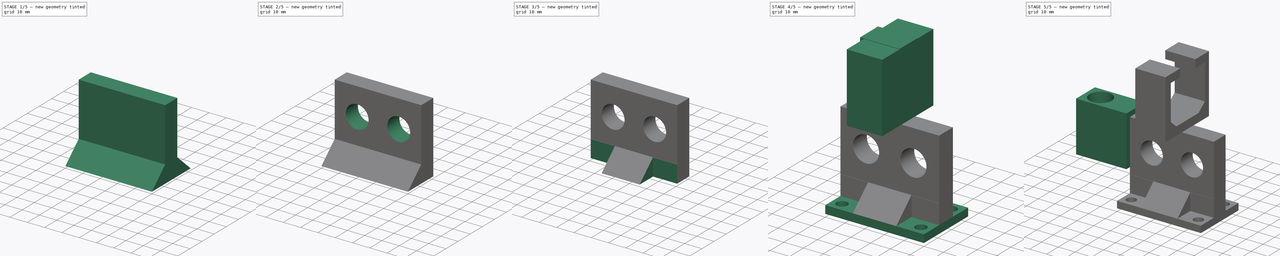
[diagram: build sequence overview — one tinted view per stage of 5, left to right]
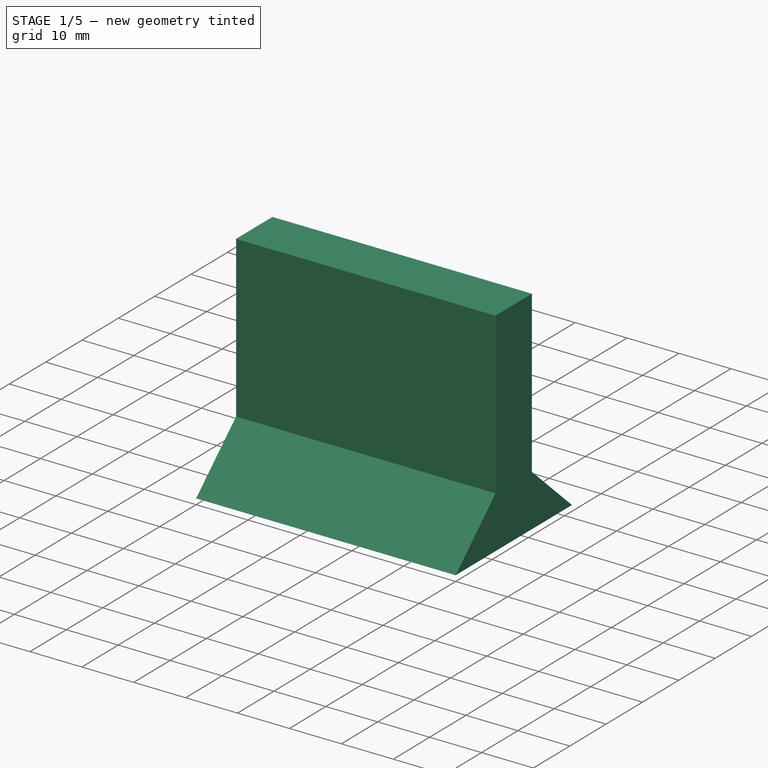
[diagram: stage 1 of 5 — iso view after this stage's code; geometry added in this stage tinted green]
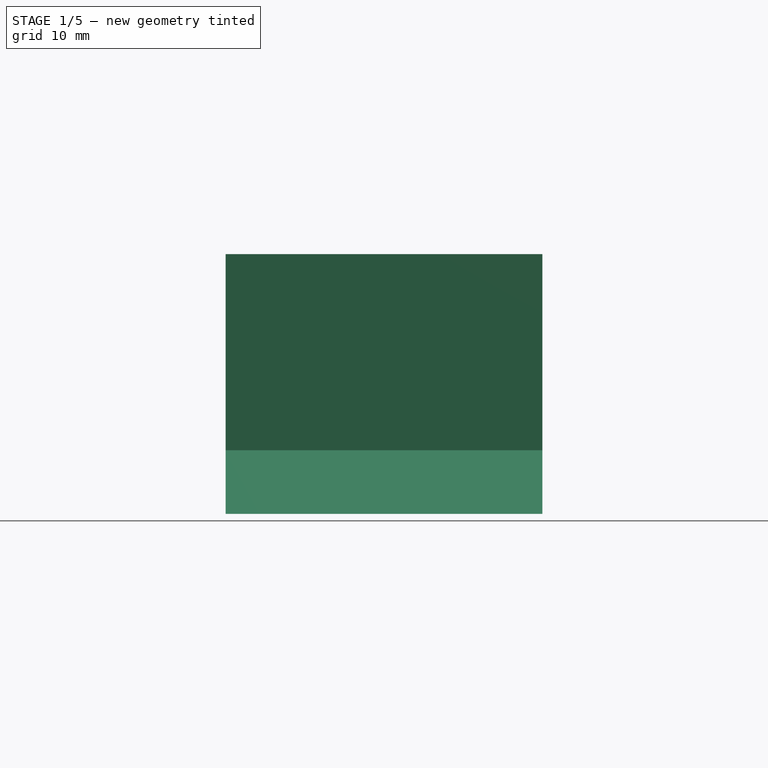
[diagram: stage 1 of 5 — front view after this stage's code; geometry added in this stage tinted green]
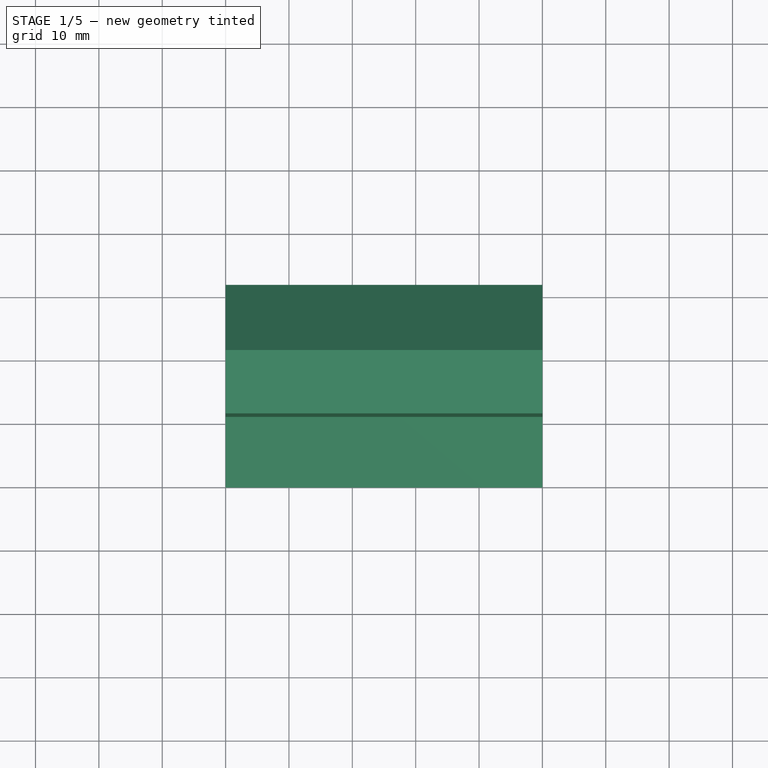
[diagram: stage 1 of 5 — top view after this stage's code; geometry added in this stage tinted green]
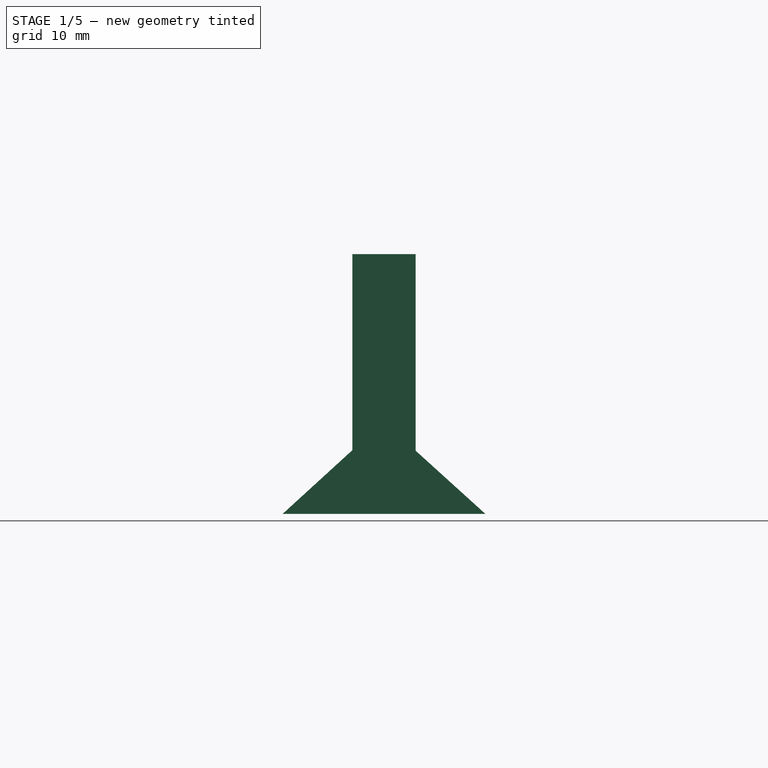
[diagram: stage 1 of 5 — right view after this stage's code; geometry added in this stage tinted green]
FCSTD DOCUMENT  (FreeCAD 0.17R13541 (Git))
Label: LimitSwitchHolder_x-axis_chainholder
License: All rights reserved
LicenseURL: http://en.wikipedia.org/wiki/All_rights_reserved
objects: Sketcher::SketchObject×15, PartDesign::Pad×13, PartDesign::Body×13, PartDesign::ShapeBinder×12, PartDesign::Boolean×12, PartDesign::Hole×2
note: 82 computed .brp shape members not serialized (recipe doc carries the construction recipe); baked Part::Feature solids carry a one-line shape summary decoded from their .brp

FEATURE [Sketcher::SketchObject] Sketch
  MapMode = 5
  Placement = pos=(0,0,0) rot=(0.57735,0.57735,0.57735;2.0944rad)
  Support = -> [YZ_Plane]
  sketch-geometry (4):
    g0: LineSegment StartX=0 StartY=44 StartZ=0 EndX=32 EndY=44 EndZ=0
    g1: LineSegment StartX=32 StartY=44 StartZ=0 EndX=32 EndY=3 EndZ=0
    g2: LineSegment StartX=32 StartY=3 StartZ=0 EndX=0 EndY=3 EndZ=0
    g3: LineSegment StartX=0 StartY=3 StartZ=0 EndX=0 EndY=44 EndZ=0
  constraints (12):
    c: Coincident(g0,g1)
    c: Coincident(g1,g2)
    c: Coincident(g2,g3)
    c: Coincident(g3,g0)
    c: Horizontal(g0)
    c: Horizontal(g2)
    c: Vertical(g1)
    c: Vertical(g3)
    c: DistanceX(g-1,g2) = 0
    c: DistanceY(g-1,g2) = 3
    c: DistanceY(g3,g3) = 41
    c: DistanceX(g2,g2) = 32
FEATURE [PartDesign::Pad] Pad
  Length = 50
  Length2 = 100
  Placement = pos=(0,0,0) rot=(0.57735,0.57735,0.57735;2.0944rad)
  Profile = -> Sketch
  Type = 0
FEATURE [PartDesign::Body] Body004
  Group = -> [CopyPad003,Sketch005,Pad004,Sketch006,Hole001]
  Origin = -> Origin004
  Tip = -> Hole001
FEATURE [PartDesign::ShapeBinder] CopyPad004
FEATURE [Sketcher::SketchObject] Sketch007
  MapMode = 5
  Placement = pos=(0,0,0) rot=(-0.57735,0.57735,0.57735;4.18879rad)
  Support = -> [CopyPad004]
  sketch-geometry (4):
    g0: LineSegment StartX=0 StartY=3 StartZ=0 EndX=-11 EndY=13.048 EndZ=0
    g1: LineSegment StartX=-11 StartY=13.048 StartZ=0 EndX=-11 EndY=44 EndZ=0
    g2: LineSegment StartX=-11 StartY=44 StartZ=0 EndX=0 EndY=44 EndZ=0
    g3: LineSegment StartX=0 StartY=44 StartZ=0 EndX=0 EndY=3 EndZ=0
  constraints (11):
    c: PointOnObject(g0,g-2)
    c: Coincident(g0,g1)
    c: Vertical(g1)
    c: Coincident(g1,g2)
    c: Horizontal(g2)
    c: Coincident(g2,g3)
    c: Coincident(g3,g0)
    c: Vertical(g3)
    c: DistanceX(g2,g2) = 11
    c: DistanceY(g-1,g0) = 3
    c: DistanceY(g3,g3) = 41
FEATURE [PartDesign::Pad] Pad005
  Length = 50
  Length2 = 100
  Profile = -> Sketch007
  Reversed = true
  Type = 0
FEATURE [PartDesign::Body] Body005
  Group = -> [CopyPad004,Sketch007,Pad005]
  Origin = -> Origin005
  Tip = -> Pad005
FEATURE [PartDesign::ShapeBinder] CopyPad005
FEATURE [Sketcher::SketchObject] Sketch008
  MapMode = 5
  Placement = pos=(0,0,0) rot=(-0.57735,0.57735,0.57735;4.18879rad)
  Support = -> [CopyPad005]
  sketch-geometry (4):
    g0: LineSegment StartX=-32 StartY=44 StartZ=0 EndX=-21 EndY=44 EndZ=0
    g1: LineSegment StartX=-21 StartY=44 StartZ=0 EndX=-21 EndY=12.9662 EndZ=0
    g2: LineSegment StartX=-21 StartY=12.9662 StartZ=0 EndX=-32 EndY=3 EndZ=0
    g3: LineSegment StartX=-32 StartY=3 StartZ=0 EndX=-32 EndY=44 EndZ=0
  constraints (11):
    c: Horizontal(g0)
    c: Coincident(g0,g1)
    c: Coincident(g1,g2)
    c: Coincident(g2,g3)
    c: Coincident(g3,g0)
    c: Vertical(g3)
    c: DistanceX(g2,g-1) = 32
    c: DistanceY(g-1,g2) = 3
    c: DistanceY(g3,g3) = 41
    c: DistanceX(g0,g0) = 11
    c: Vertical(g1)
FEATURE [PartDesign::Pad] Pad006
  Length = 50
  Length2 = 100
  Profile = -> Sketch008
  Reversed = true
  Type = 0
FEATURE [PartDesign::Body] Body002
  Group = -> [CopyPad001,Sketch002,Pad002,Boolean]
  Origin = -> Origin002
  Tip = -> Boolean
FEATURE [PartDesign::Boolean] Boolean001
  BaseFeature = -> Pad
  Group = -> [Body005]
  Type = 1
FEATURE [PartDesign::Boolean] Boolean002
  BaseFeature = -> Boolean001
  Group = -> [Body006]
  Type = 1
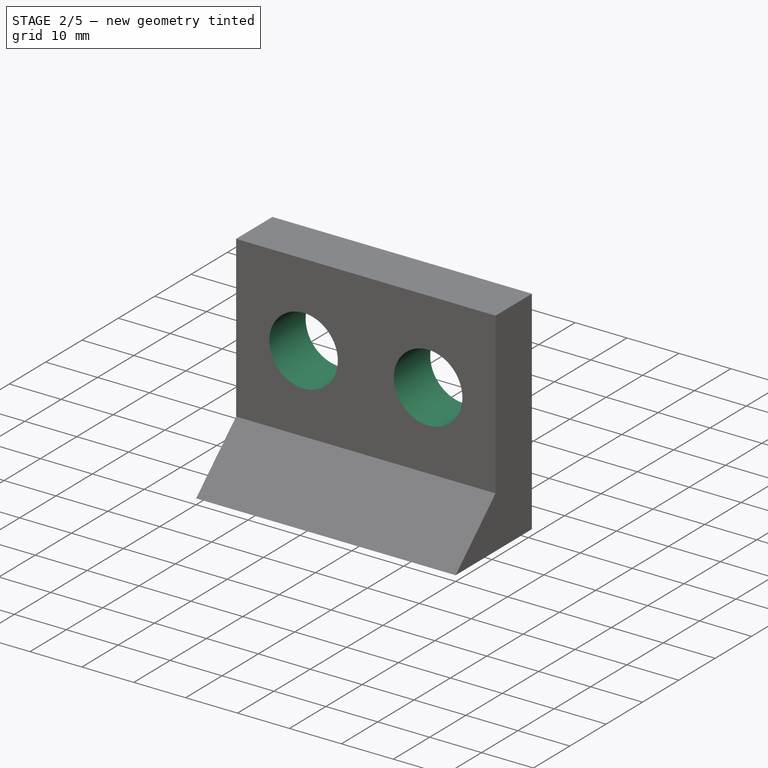
[diagram: stage 2 of 5 — iso view after this stage's code; geometry added in this stage tinted green]
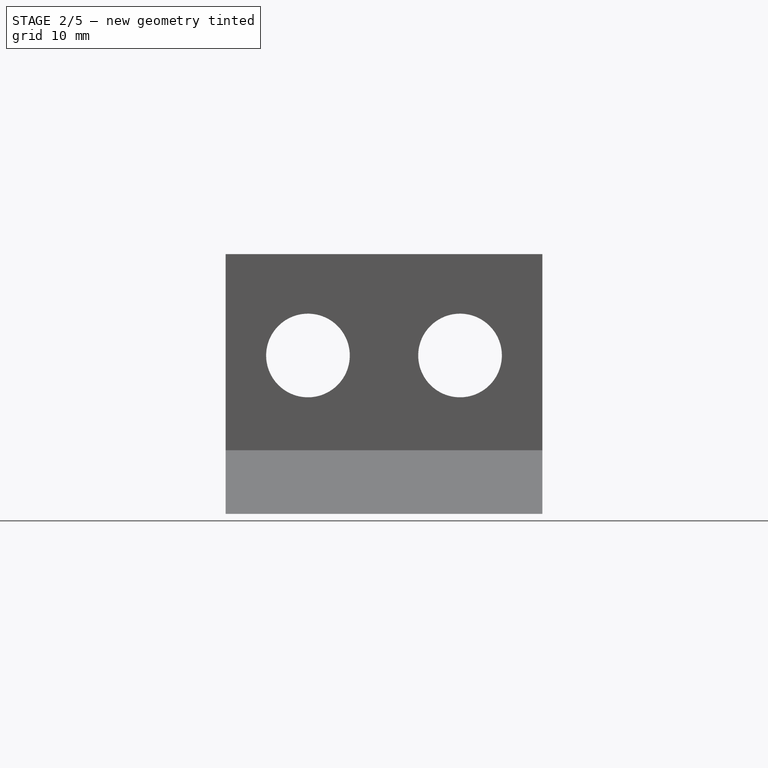
[diagram: stage 2 of 5 — front view after this stage's code; geometry added in this stage tinted green]
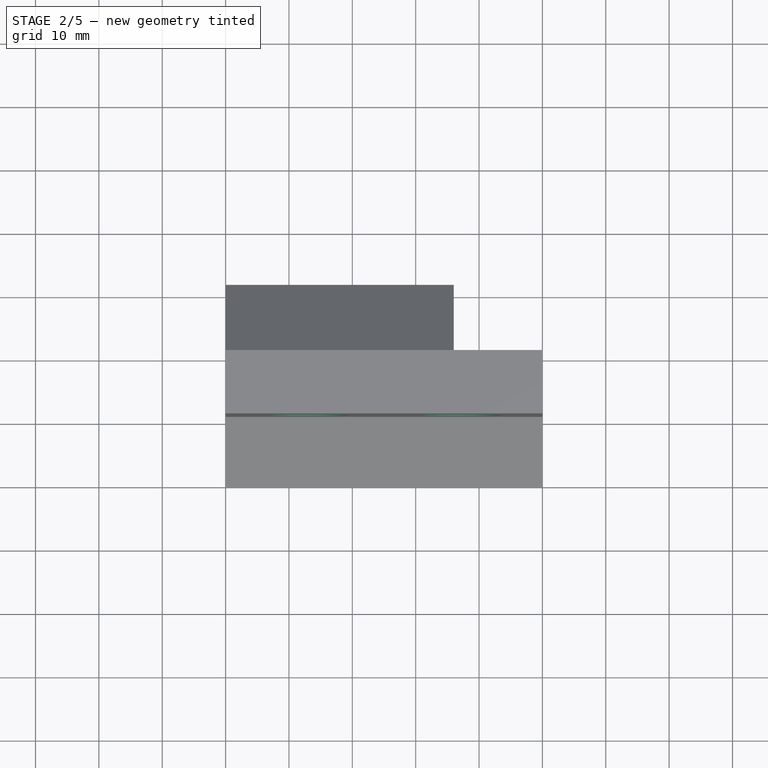
[diagram: stage 2 of 5 — top view after this stage's code; geometry added in this stage tinted green]
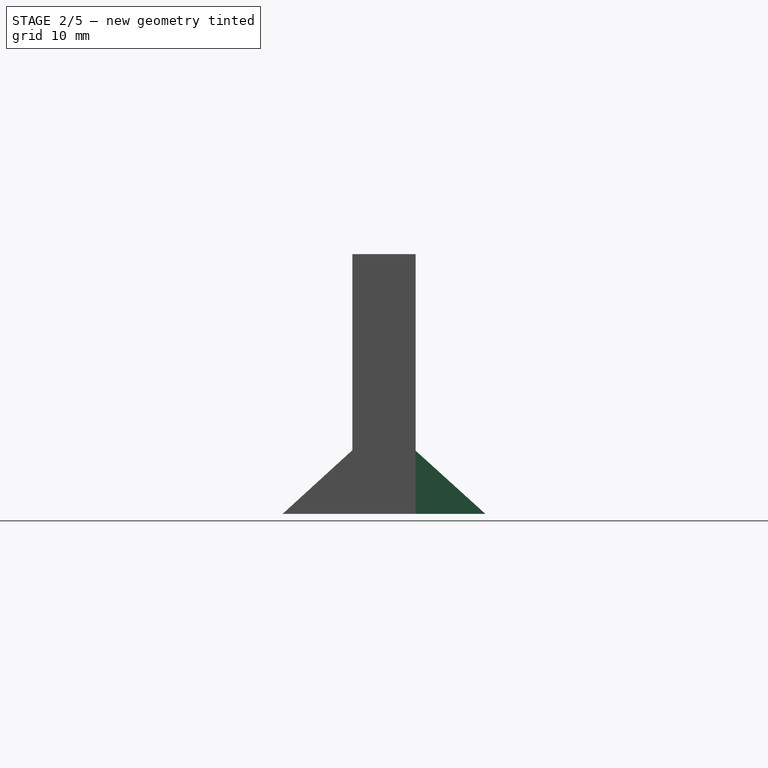
[diagram: stage 2 of 5 — right view after this stage's code; geometry added in this stage tinted green]
FEATURE [PartDesign::Body] Body006
  Group = -> [CopyPad005,Sketch008,Pad006]
  Origin = -> Origin006
  Tip = -> Pad006
FEATURE [PartDesign::ShapeBinder] CopyPad006
  Placement = pos=(50,0,0) rot=(0,0,1;0rad)
FEATURE [Sketcher::SketchObject] Sketch009
  MapMode = 5
  Placement = pos=(50,0,0) rot=(0.57735,0.57735,0.57735;2.0944rad)
  Support = -> [CopyPad006]
  sketch-geometry (4):
    g0: LineSegment StartX=21 StartY=13 StartZ=0 EndX=32 EndY=13 EndZ=0
    g1: LineSegment StartX=32 StartY=13 StartZ=0 EndX=32 EndY=3 EndZ=0
    g2: LineSegment StartX=32 StartY=3 StartZ=0 EndX=21 EndY=3 EndZ=0
    g3: LineSegment StartX=21 StartY=3 StartZ=0 EndX=21 EndY=13 EndZ=0
  constraints (12):
    c: Coincident(g0,g1)
    c: Coincident(g1,g2)
    c: Coincident(g2,g3)
    c: Coincident(g3,g0)
    c: Horizontal(g0)
    c: Horizontal(g2)
    c: Vertical(g1)
    c: Vertical(g3)
    c: DistanceY(g-1,g2) = 3
    c: DistanceX(g-1,g2) = 21
    c: DistanceX(g0,g0) = 11
    c: DistanceY(g3,g3) = 10
FEATURE [PartDesign::Pad] Pad007
  Length = 14
  Length2 = 100
  Placement = pos=(50,0,0) rot=(0,0,1;0rad)
  Profile = -> Sketch009
  Reversed = true
  Type = 0
FEATURE [PartDesign::Body] Body010
  Group = -> [CopyPad005003,Sketch012,Pad010]
  Origin = -> Origin010
  Tip = -> Pad010
FEATURE [PartDesign::ShapeBinder] CopyPad006001
FEATURE [Sketcher::SketchObject] Sketch013
  MapMode = 5
  Placement = pos=(0,32,0) rot=(0,0.707107,0.707107;3.14159rad)
  Support = -> [CopyPad006001]
  sketch-geometry (1):
    g0: Circle CenterX=-37 CenterY=28 CenterZ=0 NormalX=0 NormalY=0 NormalZ=1 AngleXU=0 Radius=6.6
  constraints (3):
    c: DistanceX(g0,g-1) = 37
    c: DistanceY(g-1,g0) = 28
    c: Radius(g0) = 6.6
FEATURE [PartDesign::Pad] Pad011
  Length = 30
  Length2 = 100
  Profile = -> Sketch013
  Reversed = true
  Type = 0
FEATURE [PartDesign::Body] Body011
  Group = -> [CopyPad006001,Sketch013,Pad011]
  Origin = -> Origin011
  Tip = -> Pad011
FEATURE [PartDesign::ShapeBinder] CopyPad006002
FEATURE [Sketcher::SketchObject] Sketch014
  MapMode = 5
  Placement = pos=(0,32,0) rot=(0,0.707107,0.707107;3.14159rad)
  Support = -> [CopyPad006002]
  sketch-geometry (1):
    g0: Circle CenterX=-13 CenterY=28 CenterZ=0 NormalX=0 NormalY=0 NormalZ=1 AngleXU=0 Radius=6.6
  constraints (3):
    c: DistanceY(g-1,g0) = 28
    c: DistanceX(g0,g-1) = 13
    c: Radius(g0) = 6.6
FEATURE [PartDesign::Pad] Pad012
  Length = 35
  Length2 = 100
  Profile = -> Sketch014
  Reversed = true
  Type = 0
FEATURE [PartDesign::Boolean] Boolean003
  BaseFeature = -> Boolean002
  Group = -> [Body011]
  Type = 1
FEATURE [PartDesign::Boolean] Boolean004
  BaseFeature = -> Boolean003
  Group = -> [Body012]
  Type = 1
FEATURE [PartDesign::Boolean] Boolean005
  BaseFeature = -> Boolean004
  Group = -> [Body007]
  Type = 1
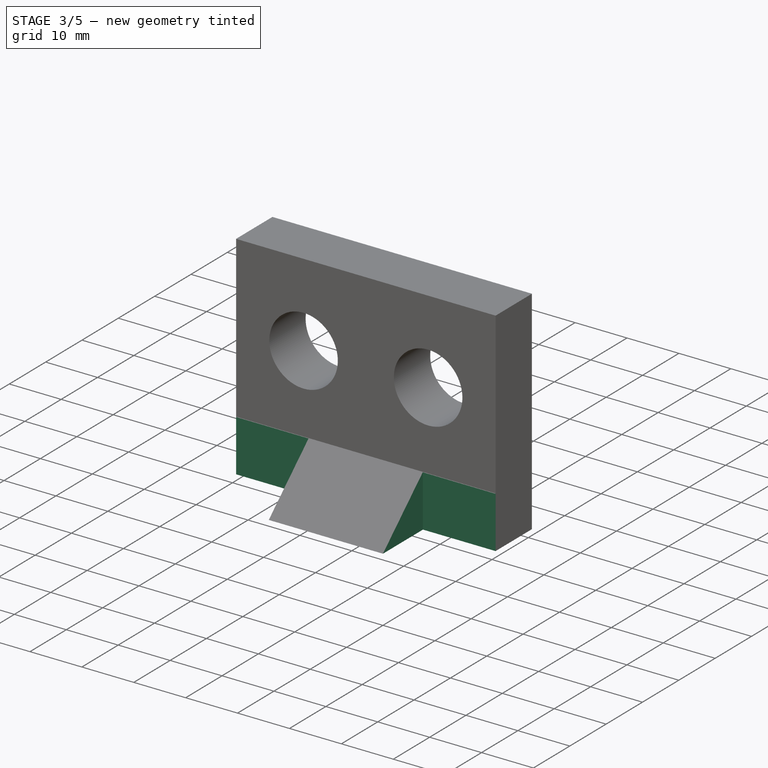
[diagram: stage 3 of 5 — iso view after this stage's code; geometry added in this stage tinted green]
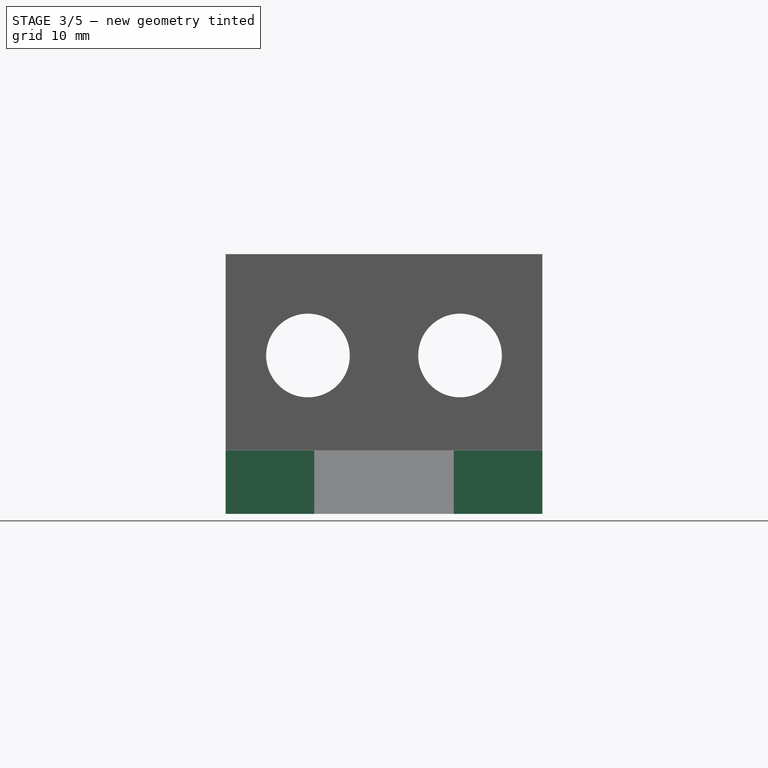
[diagram: stage 3 of 5 — front view after this stage's code; geometry added in this stage tinted green]
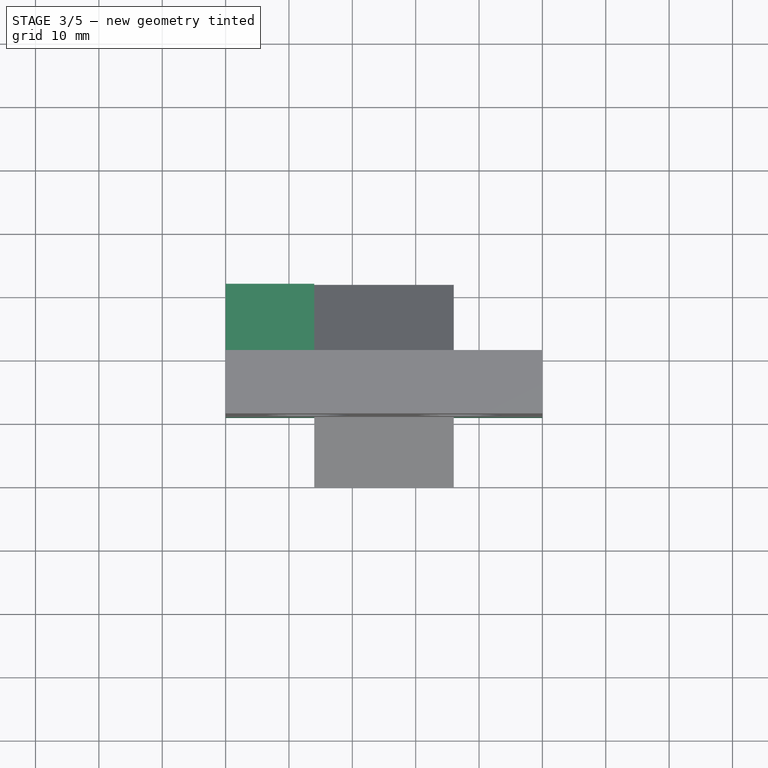
[diagram: stage 3 of 5 — top view after this stage's code; geometry added in this stage tinted green]
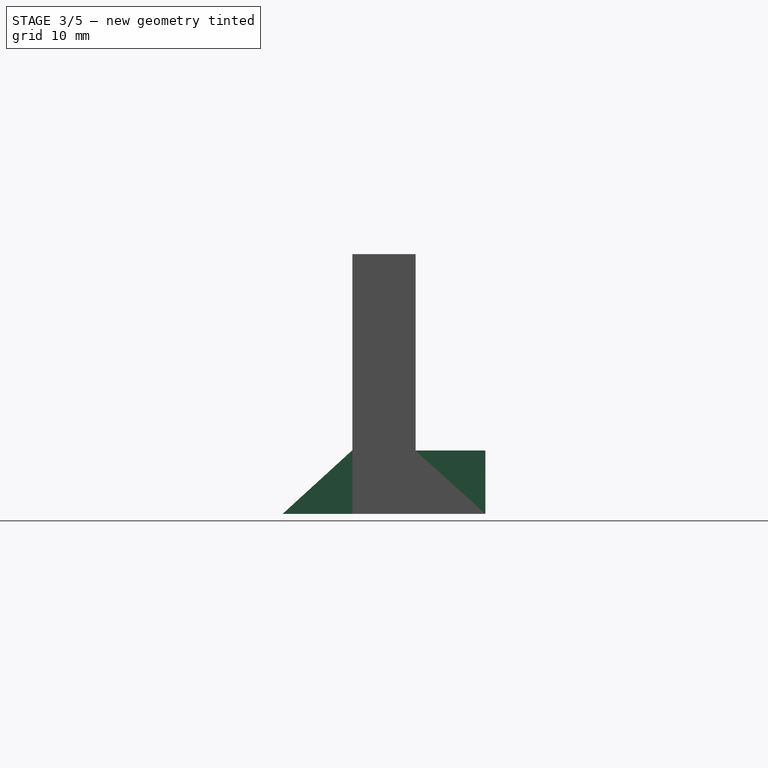
[diagram: stage 3 of 5 — right view after this stage's code; geometry added in this stage tinted green]
FEATURE [PartDesign::Body] Body007
  Group = -> [CopyPad006,Sketch009,Pad007]
  Origin = -> Origin007
  Tip = -> Pad007
FEATURE [PartDesign::ShapeBinder] CopyPad005001
  Placement = pos=(50,0,0) rot=(0,0,1;0rad)
FEATURE [Sketcher::SketchObject] Sketch010
  MapMode = 5
  Placement = pos=(50,0,0) rot=(0.57735,0.57735,0.57735;2.0944rad)
  Support = -> [CopyPad005001]
  sketch-geometry (4):
    g0: LineSegment StartX=11 StartY=13 StartZ=0 EndX=0 EndY=13 EndZ=0
    g1: LineSegment StartX=0 StartY=13 StartZ=0 EndX=0 EndY=3 EndZ=0
    g2: LineSegment StartX=0 StartY=3 StartZ=0 EndX=11 EndY=3 EndZ=0
    g3: LineSegment StartX=11 StartY=3 StartZ=0 EndX=11 EndY=13 EndZ=0
  constraints (12):
    c: Coincident(g0,g1)
    c: Coincident(g1,g2)
    c: Coincident(g2,g3)
    c: Coincident(g3,g0)
    c: Horizontal(g0)
    c: Horizontal(g2)
    c: Vertical(g1)
    c: Vertical(g3)
    c: PointOnObject(g1,g-2)
    c: DistanceY(g-1,g1) = 3
    c: DistanceX(g2,g2) = 11
    c: DistanceY(g3,g3) = 10
FEATURE [PartDesign::Pad] Pad008
  Length = 14
  Length2 = 100
  Placement = pos=(50,0,0) rot=(0,0,1;0rad)
  Profile = -> Sketch010
  Reversed = true
  Type = 0
FEATURE [PartDesign::Body] Body008
  Group = -> [CopyPad005001,Sketch010,Pad008]
  Origin = -> Origin008
  Tip = -> Pad008
FEATURE [PartDesign::ShapeBinder] CopyPad005002
FEATURE [Sketcher::SketchObject] Sketch011
  MapMode = 5
  Placement = pos=(0,0,0) rot=(-0.57735,0.57735,0.57735;4.18879rad)
  Support = -> [CopyPad005002]
  sketch-geometry (4):
    g0: LineSegment StartX=-11 StartY=13 StartZ=0 EndX=0 EndY=13 EndZ=0
    g1: LineSegment StartX=0 StartY=13 StartZ=0 EndX=0 EndY=3 EndZ=0
    g2: LineSegment StartX=0 StartY=3 StartZ=0 EndX=-11 EndY=3 EndZ=0
    g3: LineSegment StartX=-11 StartY=3 StartZ=0 EndX=-11 EndY=13 EndZ=0
  constraints (12):
    c: Coincident(g0,g1)
    c: Coincident(g1,g2)
    c: Coincident(g2,g3)
    c: Coincident(g3,g0)
    c: Horizontal(g0)
    c: Horizontal(g2)
    c: Vertical(g1)
    c: Vertical(g3)
    c: DistanceX(g1,g-1) = 0
    c: DistanceY(g-1,g1) = 3
    c: DistanceX(g2,g2) = 11
    c: DistanceY(g3,g3) = 10
FEATURE [PartDesign::Pad] Pad009
  Length = 14
  Length2 = 100
  Profile = -> Sketch011
  Reversed = true
  Type = 0
FEATURE [PartDesign::Body] Body009
  Group = -> [CopyPad005002,Sketch011,Pad009]
  Origin = -> Origin009
  Tip = -> Pad009
FEATURE [PartDesign::ShapeBinder] CopyPad005003
FEATURE [Sketcher::SketchObject] Sketch012
  MapMode = 5
  Placement = pos=(0,0,0) rot=(-0.57735,0.57735,0.57735;4.18879rad)
  Support = -> [CopyPad005003]
  sketch-geometry (4):
    g0: LineSegment StartX=-21 StartY=13 StartZ=0 EndX=-32 EndY=13 EndZ=0
    g1: LineSegment StartX=-32 StartY=13 StartZ=0 EndX=-32 EndY=3 EndZ=0
    g2: LineSegment StartX=-32 StartY=3 StartZ=0 EndX=-21 EndY=3 EndZ=0
    g3: LineSegment StartX=-21 StartY=3 StartZ=0 EndX=-21 EndY=13 EndZ=0
  constraints (12):
    c: Coincident(g0,g1)
    c: Coincident(g1,g2)
    c: Coincident(g2,g3)
    c: Coincident(g3,g0)
    c: Horizontal(g0)
    c: Horizontal(g2)
    c: Vertical(g1)
    c: Vertical(g3)
    c: DistanceY(g-1,g2) = 3
    c: DistanceX(g2,g-1) = 21
    c: DistanceX(g2,g2) = 11
    c: DistanceY(g3,g3) = 10
FEATURE [PartDesign::Pad] Pad010
  Length = 14
  Length2 = 100
  Profile = -> Sketch012
  Reversed = true
  Type = 0
FEATURE [PartDesign::Boolean] Boolean006
  BaseFeature = -> Boolean005
  Group = -> [Body008]
  Type = 1
FEATURE [PartDesign::Boolean] Boolean007
  BaseFeature = -> Boolean006
  Group = -> [Body009]
  Type = 1
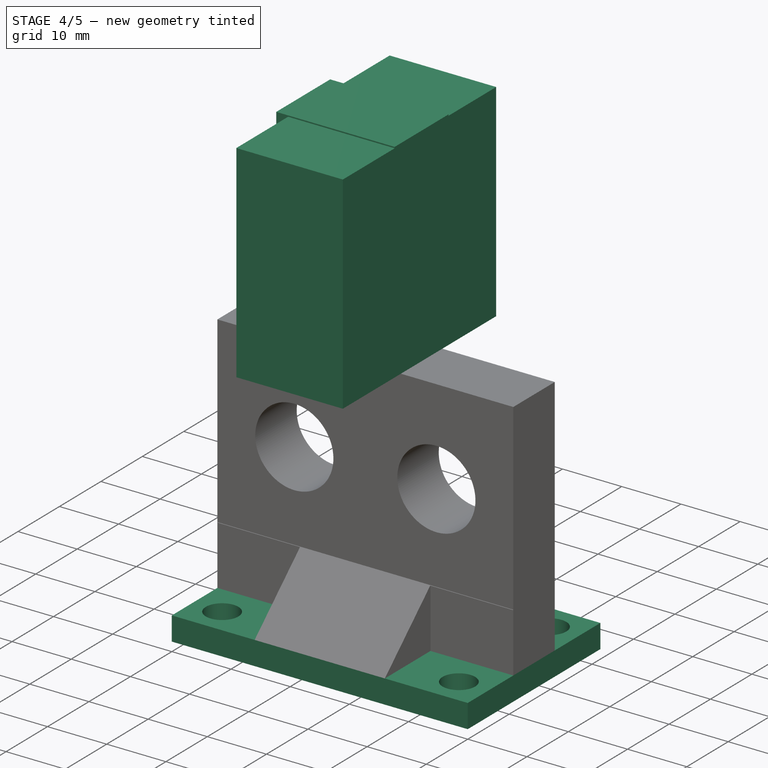
[diagram: stage 4 of 5 — iso view after this stage's code; geometry added in this stage tinted green]
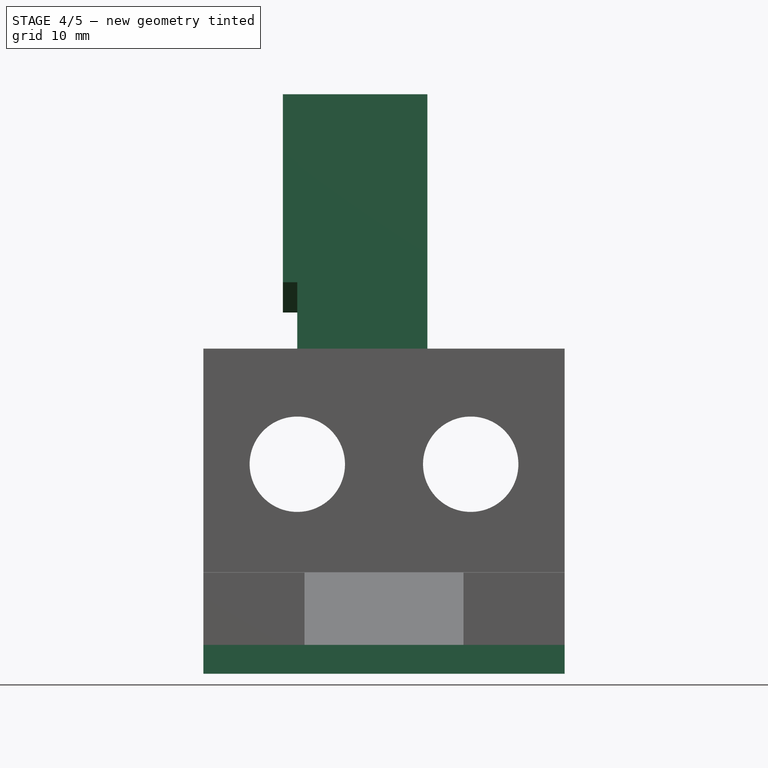
[diagram: stage 4 of 5 — front view after this stage's code; geometry added in this stage tinted green]
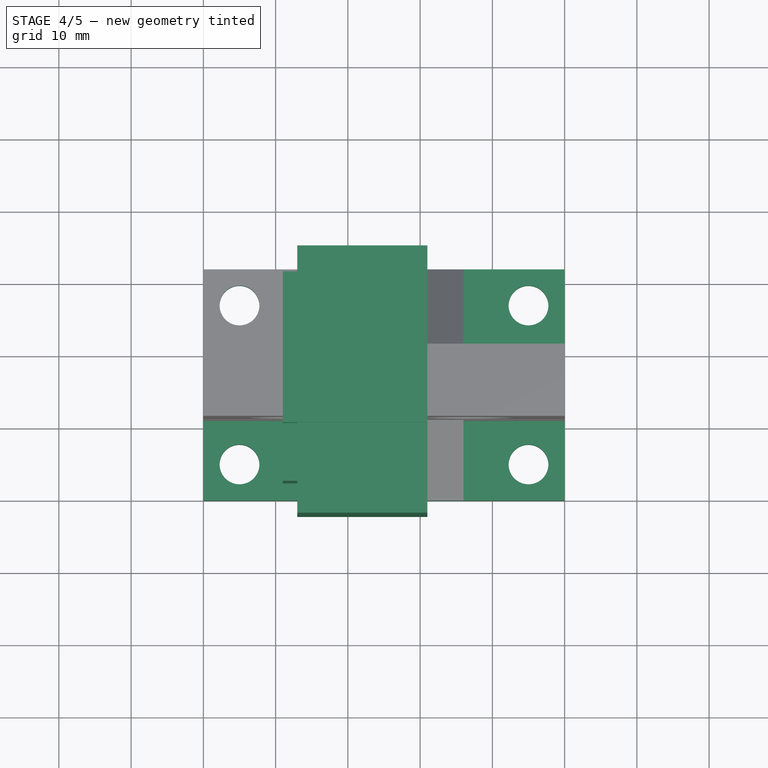
[diagram: stage 4 of 5 — top view after this stage's code; geometry added in this stage tinted green]
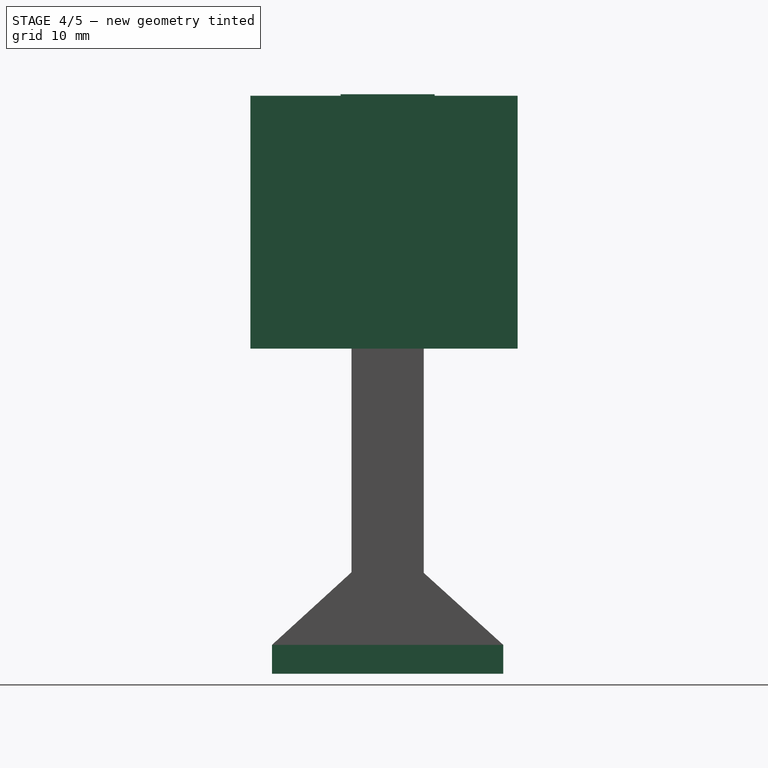
[diagram: stage 4 of 5 — right view after this stage's code; geometry added in this stage tinted green]
FEATURE [PartDesign::ShapeBinder] CopyPad
  Placement = pos=(50,0,0) rot=(0,0,1;0rad)
FEATURE [Sketcher::SketchObject] Sketch001
  MapMode = 5
  Placement = pos=(50,0,0) rot=(0.57735,0.57735,0.57735;2.0944rad)
  Support = -> [CopyPad]
  sketch-geometry (4):
    g0: LineSegment StartX=0 StartY=3 StartZ=0 EndX=32 EndY=3 EndZ=0
    g1: LineSegment StartX=32 StartY=3 StartZ=0 EndX=32 EndY=-1 EndZ=0
    g2: LineSegment StartX=32 StartY=-1 StartZ=0 EndX=0 EndY=-1 EndZ=0
    g3: LineSegment StartX=0 StartY=-1 StartZ=0 EndX=0 EndY=3 EndZ=0
  constraints (12):
    c: Coincident(g0,g1)
    c: Coincident(g1,g2)
    c: Coincident(g2,g3)
    c: Coincident(g3,g0)
    c: Horizontal(g0)
    c: Horizontal(g2)
    c: Vertical(g1)
    c: Vertical(g3)
    c: PointOnObject(g0,g-2)
    c: DistanceY(g2,g-1) = 1
    c: DistanceX(g0,g0) = 32
    c: DistanceY(g3,g3) = 4
FEATURE [PartDesign::Pad] Pad001
  Length = 50
  Length2 = 100
  Placement = pos=(50,0,0) rot=(0,0,1;0rad)
  Profile = -> Sketch001
  Reversed = true
  Type = 0
FEATURE [PartDesign::ShapeBinder] CopyPad001
  Placement = pos=(0,0,0) rot=(0.57735,0.57735,0.57735;2.0944rad)
FEATURE [Sketcher::SketchObject] Sketch002
  MapMode = 5
  Placement = pos=(0,0,44) rot=(0,0,-1;1.5708rad)
  Support = -> [CopyPad001]
  sketch-geometry (4):
    g0: LineSegment StartX=-34 StartY=13 StartZ=0 EndX=3 EndY=13 EndZ=0
    g1: LineSegment StartX=3 StartY=13 StartZ=0 EndX=3 EndY=31 EndZ=0
    g2: LineSegment StartX=3 StartY=31 StartZ=0 EndX=-34 EndY=31 EndZ=0
    g3: LineSegment StartX=-34 StartY=31 StartZ=0 EndX=-34 EndY=13 EndZ=0
  constraints (12):
    c: Coincident(g0,g1)
    c: Coincident(g1,g2)
    c: Coincident(g2,g3)
    c: Coincident(g3,g0)
    c: Horizontal(g0)
    c: Horizontal(g2)
    c: Vertical(g1)
    c: Vertical(g3)
    c: DistanceY(g1,g1) = 18
    c: DistanceX(g0,g0) = 37
    c: DistanceY(g-1,g0) = 13
    c: DistanceX(g-1,g0) = 3
FEATURE [PartDesign::Pad] Pad002
  Length = 35
  Length2 = 100
  Placement = pos=(0,0,0) rot=(0.57735,0.57735,0.57735;2.0944rad)
  Profile = -> Sketch002
  Type = 0
FEATURE [PartDesign::ShapeBinder] CopyPad002
  Placement = pos=(0,0,0) rot=(0.57735,0.57735,0.57735;2.0944rad)
FEATURE [Sketcher::SketchObject] Sketch003
  MapMode = 5
  Placement = pos=(31,0,0) rot=(0.57735,0.57735,0.57735;2.0944rad)
  Support = -> [CopyPad002]
  sketch-geometry (10):
    g0: LineSegment StartX=9.5 StartY=79.2111 StartZ=0 EndX=22.5 EndY=79.2111 EndZ=0
    g1: LineSegment StartX=22.5 StartY=79.2111 StartZ=0 EndX=22.5 EndY=74.2111 EndZ=0
    g2: LineSegment StartX=22.5 StartY=74.2111 StartZ=0 EndX=30.5 EndY=74.2111 EndZ=0
    g3: LineSegment StartX=30.5 StartY=74.2111 StartZ=0 EndX=30.5 EndY=53.1833 EndZ=0
    g4: LineSegment StartX=30.5 StartY=53.1833 StartZ=0 EndX=25.1121 EndY=49.0061 EndZ=0
    g5: LineSegment StartX=25.1121 StartY=49.0061 StartZ=0 EndX=6.11208 EndY=49.0061 EndZ=0
    g6: LineSegment StartX=6.11208 StartY=49.0061 StartZ=0 EndX=1.5 EndY=53.1833 EndZ=0
    g7: LineSegment StartX=1.5 StartY=53.1833 StartZ=0 EndX=1.5 EndY=74.2111 EndZ=0
    g8: LineSegment StartX=1.5 StartY=74.2111 StartZ=0 EndX=9.5 EndY=74.2111 EndZ=0
    g9: LineSegment StartX=9.5 StartY=74.2111 StartZ=0 EndX=9.5 EndY=79.2111 EndZ=0
  constraints (26):
    c: Horizontal(g0)
    c: Coincident(g0,g1)
    c: Vertical(g1)
    c: Coincident(g1,g2)
    c: Horizontal(g2)
    c: Coincident(g2,g3)
    c: Vertical(g3)
    c: Coincident(g3,g4)
    c: Coincident(g4,g5)
    c: Horizontal(g5)
    c: Coincident(g5,g6)
    c: Coincident(g6,g7)
    c: Vertical(g7)
    c: Coincident(g7,g8)
    c: Horizontal(g8)
    c: Coincident(g8,g9)
    c: Coincident(g9,g0)
    c: Vertical(g9)
    c: DistanceX(g0,g0) = 13
    c: DistanceX(g-1,g7) = 1.5
    c: DistanceY(g9,g9) = 5
    c: DistanceY(g1,g1) = 5
    c: DistanceX(g5,g5) = 19
    c: DistanceX(g8,g8) = 8
    c: DistanceX(g2,g2) = 8
    c: Horizontal(g6,g3)
FEATURE [PartDesign::Pad] Pad003
  Length = 20
  Length2 = 100
  Placement = pos=(0,0,0) rot=(0.57735,0.57735,0.57735;2.0944rad)
  Profile = -> Sketch003
  Reversed = true
  Type = 0
FEATURE [PartDesign::Body] Body003
  Group = -> [CopyPad002,Sketch003,Pad003]
  Origin = -> Origin003
  Tip = -> Pad003
FEATURE [Sketcher::SketchObject] Sketch004
  MapMode = 5
  Placement = pos=(50,0,-1) rot=(1,0,0;3.14159rad)
  Support = -> [Pad001]
  sketch-geometry (4):
    g0: Circle CenterX=-45 CenterY=-5 CenterZ=0 NormalX=0 NormalY=0 NormalZ=1 AngleXU=0 Radius=2.54441
    g1: Circle CenterX=-5 CenterY=-5 CenterZ=0 NormalX=0 NormalY=0 NormalZ=1 AngleXU=0 Radius=2.10898
    g2: Circle CenterX=-5 CenterY=-27 CenterZ=0 NormalX=0 NormalY=0 NormalZ=1 AngleXU=0 Radius=2.53881
    g3: Circle CenterX=-45 CenterY=-27 CenterZ=0 NormalX=0 NormalY=0 NormalZ=1 AngleXU=0 Radius=2.65066
  constraints (8):
    c: DistanceY(g1,g-1) = 5
    c: DistanceX(g1,g-1) = 5
    c: DistanceX(g0,g1) = 40
    c: Horizontal(g0,g1)
    c: DistanceY(g2,g1) = 22
    c: Vertical(g2,g1)
    c: Horizontal(g2,g3)
    c: Vertical(g0,g3)
FEATURE [PartDesign::Hole] Hole
  BaseFeature = -> Pad001
  Depth = 25
  DepthType = 1
  Diameter = 5.5
  DrillPoint = 1
  DrillPointAngle = 118
  HoleCutCountersinkAngle = 90
  HoleCutDepth = 0
  HoleCutDiameter = 5
  HoleCutType = 0
  ModelActualThread = false
  Placement = pos=(50,0,0) rot=(0,0,1;0rad)
  Profile = -> Sketch004
  Tapered = false
  TaperedAngle = 90
  ThreadAngle = 0
  ThreadClass = 0
  ThreadCutOffInner = 0
  ThreadCutOffOuter = 0
  ThreadDirection = 0
  ThreadFit = 0
  ThreadPitch = 0
  ThreadSize = 6
  ThreadType = 1
  Threaded = false
FEATURE [PartDesign::Boolean] Boolean008
  BaseFeature = -> Boolean007
  Group = -> [Body010]
  Type = 1
FEATURE [PartDesign::Boolean] Boolean009
  BaseFeature = -> Boolean008
  Group = -> [Body001]
  Type = 0
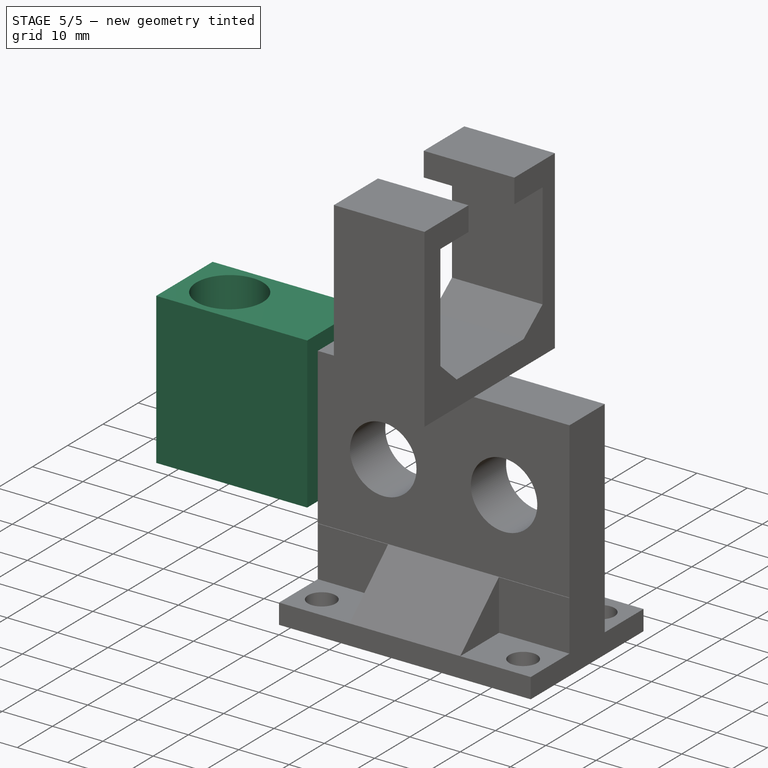
[diagram: stage 5 of 5 — iso view after this stage's code; geometry added in this stage tinted green]
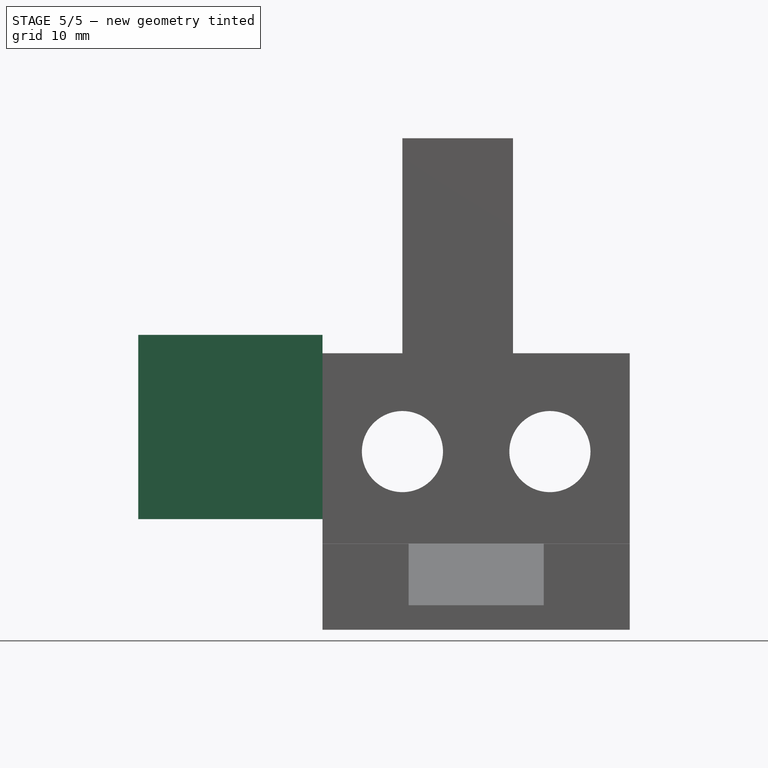
[diagram: stage 5 of 5 — front view after this stage's code; geometry added in this stage tinted green]
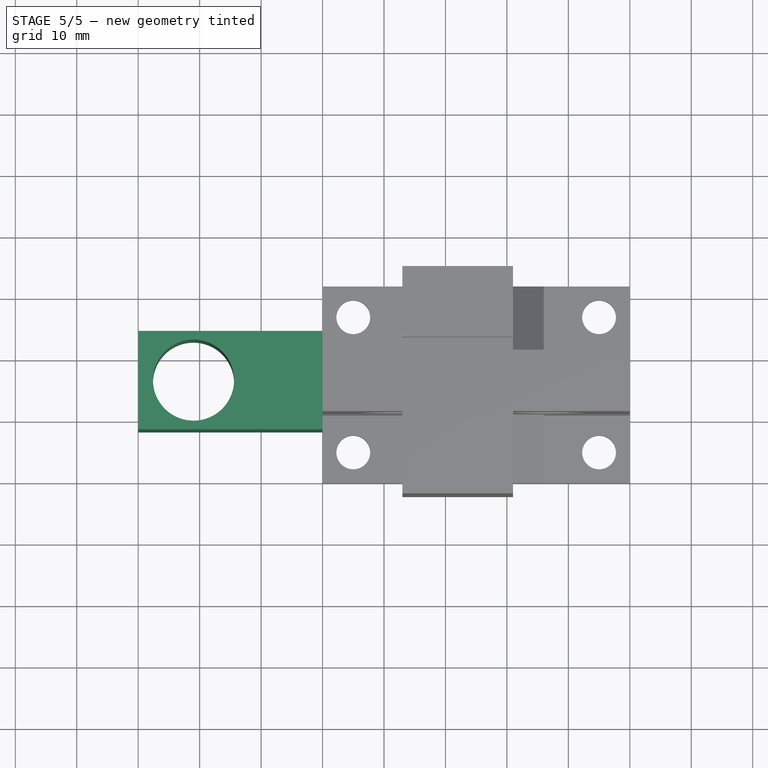
[diagram: stage 5 of 5 — top view after this stage's code; geometry added in this stage tinted green]
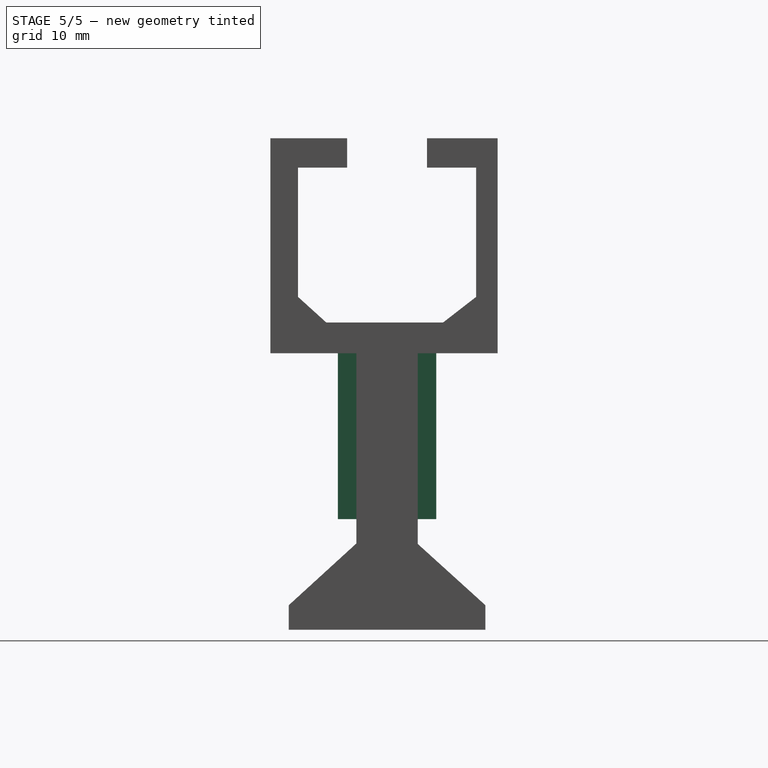
[diagram: stage 5 of 5 — right view after this stage's code; geometry added in this stage tinted green]
FEATURE [PartDesign::Body] Body001
  Group = -> [CopyPad,Sketch001,Pad001,Sketch004,Hole]
  Origin = -> Origin001
  Tip = -> Hole
FEATURE [PartDesign::ShapeBinder] CopyPad003
FEATURE [Sketcher::SketchObject] Sketch005
  MapMode = 5
  Placement = pos=(0,0,0) rot=(-0.57735,0.57735,0.57735;4.18879rad)
  Support = -> [CopyPad003]
  sketch-geometry (4):
    g0: LineSegment StartX=-24 StartY=47 StartZ=0 EndX=-8 EndY=47 EndZ=0
    g1: LineSegment StartX=-8 StartY=47 StartZ=0 EndX=-8 EndY=17 EndZ=0
    g2: LineSegment StartX=-8 StartY=17 StartZ=0 EndX=-24 EndY=17 EndZ=0
    g3: LineSegment StartX=-24 StartY=17 StartZ=0 EndX=-24 EndY=47 EndZ=0
  constraints (12):
    c: Coincident(g0,g1)
    c: Coincident(g1,g2)
    c: Coincident(g2,g3)
    c: Coincident(g3,g0)
    c: Horizontal(g0)
    c: Horizontal(g2)
    c: Vertical(g1)
    c: Vertical(g3)
    c: DistanceY(g-1,g1) = 17
    c: DistanceY(g1,g1) = 30
    c: DistanceX(g0,g0) = 16
    c: DistanceX(g1,g-1) = 8
FEATURE [PartDesign::Pad] Pad004
  Length = 30
  Length2 = 100
  Profile = -> Sketch005
  Type = 0
FEATURE [Sketcher::SketchObject] Sketch006
  MapMode = 5
  Placement = pos=(0,0,17) rot=(1,0,0;3.14159rad)
  Support = -> [Pad004]
  sketch-geometry (1):
    g0: Circle CenterX=-21 CenterY=-16 CenterZ=0 NormalX=0 NormalY=0 NormalZ=1 AngleXU=0 Radius=5.82739
  constraints (2):
    c: DistanceY(g0,g-1) = 16
    c: DistanceX(g0,g-1) = 21
FEATURE [PartDesign::Hole] Hole001
  BaseFeature = -> Pad004
  Depth = 25
  DepthType = 1
  Diameter = 13.2
  DrillPoint = 1
  DrillPointAngle = 118
  HoleCutCountersinkAngle = 90
  HoleCutDepth = 0
  HoleCutDiameter = 12
  HoleCutType = 0
  ModelActualThread = false
  Profile = -> Sketch006
  Tapered = false
  TaperedAngle = 90
  ThreadAngle = 0
  ThreadClass = 0
  ThreadCutOffInner = 0
  ThreadCutOffOuter = 0
  ThreadDirection = 0
  ThreadFit = 0
  ThreadPitch = 0
  ThreadSize = 10
  ThreadType = 1
  Threaded = false
FEATURE [PartDesign::Body] Body012
  Group = -> [CopyPad006002,Sketch014,Pad012]
  Origin = -> Origin012
  Tip = -> Pad012
FEATURE [PartDesign::Boolean] Boolean
  BaseFeature = -> Pad002
  Group = -> [Body003]
  Type = 1
FEATURE [PartDesign::Boolean] Boolean010
  BaseFeature = -> Boolean009
  Group = -> [Body002]
  Type = 0
FEATURE [PartDesign::Boolean] Boolean011
  BaseFeature = -> Boolean010
  Group = -> [Body004]
  Type = 0
FEATURE [PartDesign::Body] Body
  Group = -> [Sketch,Pad,Boolean001,Boolean002,Boolean003,Boolean004,Boolean005,Boolean006,Boolean007,Boolean008,Boolean009,Boolean010,Boolean011]
  Origin = -> Origin
  Tip = -> Boolean011
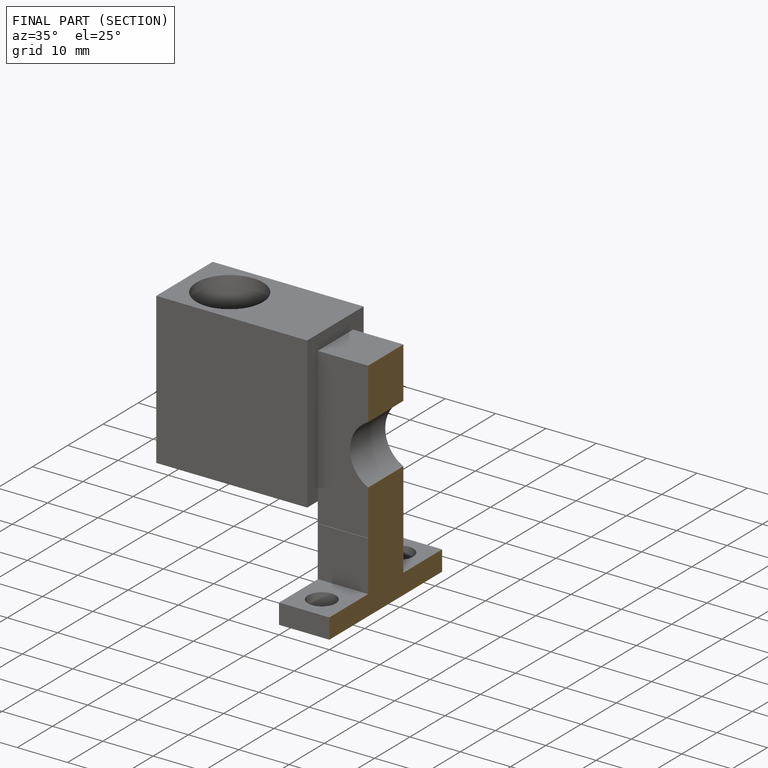
[diagram: finished part — half-section view (interior)]
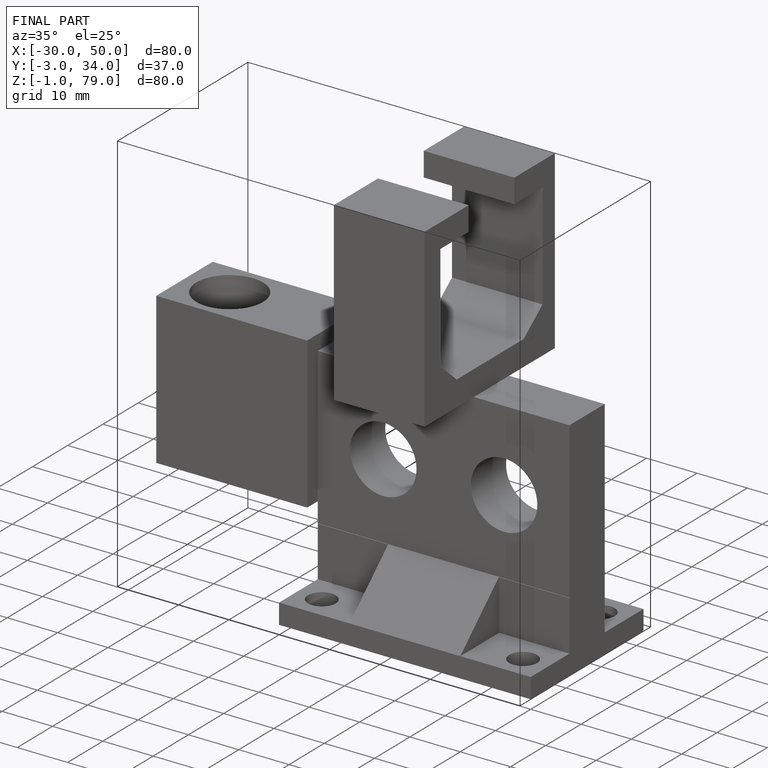
[diagram: finished part — iso view with bounding-box wireframe]
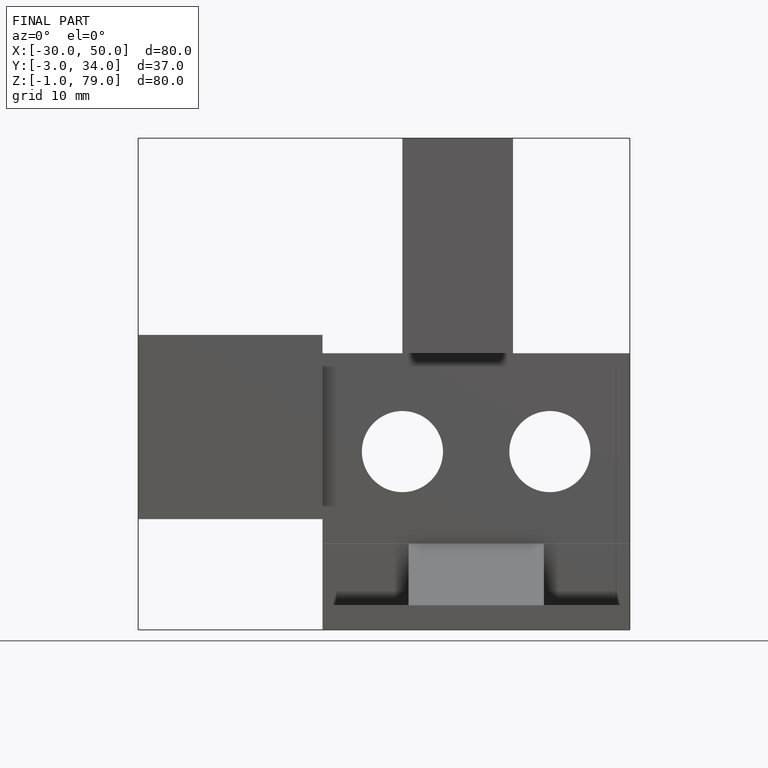
[diagram: finished part — front view with bounding-box wireframe]
